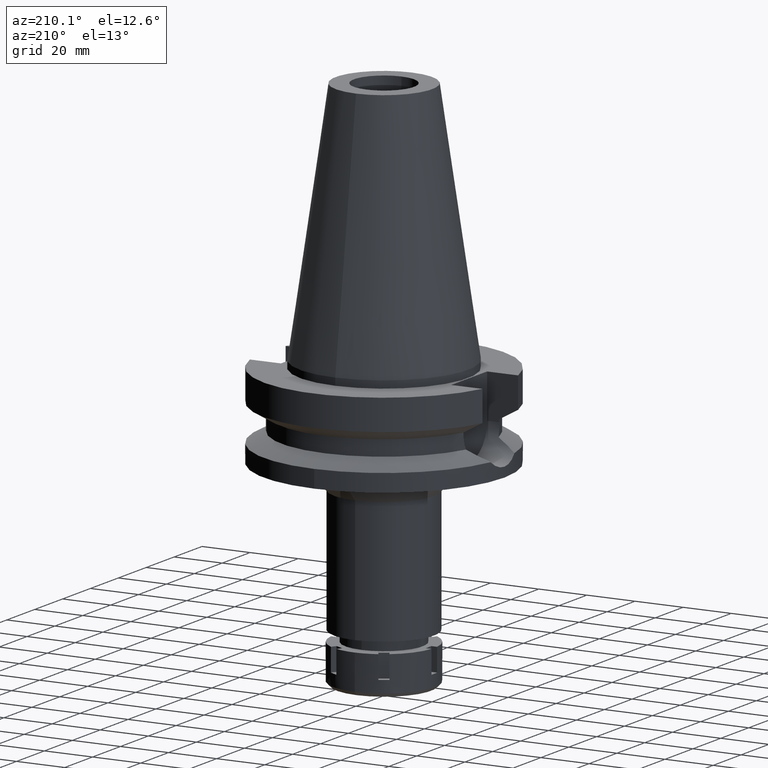
[diagram: clean part render]
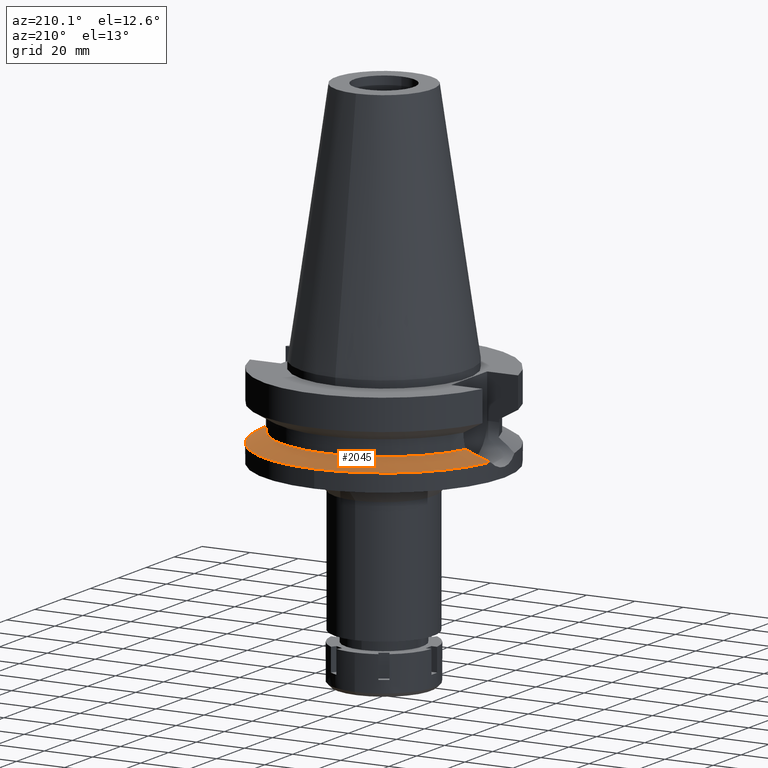
[diagram: same view with one face highlighted and labeled with its STEP entity id]
A machine part, auxiliary view. The second image highlights one B-rep face of the part: STEP entity #2045.
In plain terms, the highlighted conical surface has half-angle 60 deg.
Its self-contained STEP definition (entity closure, byte-faithful):
#33 = VERTEX_POINT ( 'NONE', #559 ) ;
#34 = EDGE_CURVE ( 'NONE', #2012, #2602, #3513, .T. ) ;
#55 = CARTESIAN_POINT ( 'NONE',  ( 45.33243307059954930, 10.38335453230233441, -28.72023715090724139 ) ) ;
#62 = CARTESIAN_POINT ( 'NONE',  ( -40.85052569294000335, 11.72538061688000077, -26.40718074535000426 ) ) ;
#72 = EDGE_LOOP ( 'NONE', ( #3275, #3635, #3191, #892, #3373 ) ) ;
#130 = CARTESIAN_POINT ( 'NONE',  ( 45.40379164219142893, 10.35650822756904432, -28.75694566959975518 ) ) ;
#251 = EDGE_CURVE ( 'NONE', #2969, #3044, #2803, .T. ) ;
#258 = CARTESIAN_POINT ( 'NONE',  ( 0.0000000000000000000, 0.0000000000000000000, -30.73730776426999967 ) ) ;
#376 = CARTESIAN_POINT ( 'NONE',  ( -46.98627468532401963, 9.746406323360600865, -29.57076731345760123 ) ) ;
#427 = CARTESIAN_POINT ( 'NONE',  ( 46.75953253645555208, 9.809270111663222380, -29.45390692277220168 ) ) ;
#462 = CARTESIAN_POINT ( 'NONE',  ( 49.26250064874000145, 8.556052234130000045, -30.73730776426999967 ) ) ;
#559 = CARTESIAN_POINT ( 'NONE',  ( -49.26250064874000145, 8.556052234130000045, -30.73730776426999967 ) ) ;
#630 = CARTESIAN_POINT ( 'NONE',  ( 45.48500909913860113, 10.32574754409892215, -28.79872370404616078 ) ) ;
#661 = CARTESIAN_POINT ( 'NONE',  ( 42.53034043756355231, 11.33527986160932066, -27.27724400854194542 ) ) ;
#761 = EDGE_CURVE ( 'NONE', #3044, #33, #2720, .T. ) ;
#811 = DIRECTION ( 'NONE',  ( 0.0000000000000000000, -1.000000000000000000, 0.0000000000000000000 ) ) ;
#816 = B_SPLINE_CURVE_WITH_KNOTS ( 'NONE', 3,
 ( #1187, #2662, #1555, #2052, #427, #3504, #1203, #2309, #630, #130, #1259, #3490, #55, #1501, #661, #2900 ),
 .UNSPECIFIED., .F., .F.,
 ( 4, 2, 2, 1, 1, 1, 1, 2, 2, 4 ),
 ( 0.0000000000000000000, 0.2500000000000469069, 0.3750000000000713873, 0.4375000000000827671, 0.4687500000000875966, 0.4843750000000898170, 0.4921875000000899281, 0.4960937500000889289, 0.5000000000000879297, 1.000000000000000000 ),
 .UNSPECIFIED. ) ;
#865 = CARTESIAN_POINT ( 'NONE',  ( 0.0000000000000000000, 0.0000000000000000000, -28.57224425480999841 ) ) ;
#892 = ORIENTED_EDGE ( 'NONE', *, *, #3013, .F. ) ;
#933 = CARTESIAN_POINT ( 'NONE',  ( 0.0000000000000000000, 0.0000000000000000000, -30.73730776426999967 ) ) ;
#1102 = DIRECTION ( 'NONE',  ( -0.9852500129747439050, 0.1711210446826074982, 0.0000000000000000000 ) ) ;
#1173 = EDGE_CURVE ( 'NONE', #2602, #2969, #816, .T. ) ;
#1187 = CARTESIAN_POINT ( 'NONE',  ( 49.26250064874000145, 8.556052234130000045, -30.73730776426999967 ) ) ;
#1203 = CARTESIAN_POINT ( 'NONE',  ( 45.96584841009470068, 10.13901845308247651, -29.04601403992775843 ) ) ;
#1259 = CARTESIAN_POINT ( 'NONE',  ( 45.36888519996826119, 10.36965759942468246, -28.73898915168728507 ) ) ;
#1501 = CARTESIAN_POINT ( 'NONE',  ( 44.02092064244708070, 10.87473587190525315, -28.04554399755864580 ) ) ;
#1555 = CARTESIAN_POINT ( 'NONE',  ( 48.08420350912489738, 9.199014339284307340, -30.13377188362764514 ) ) ;
#1777 = CARTESIAN_POINT ( 'NONE',  ( -42.65282647486308321, 11.30683512041312078, -27.34068588608615613 ) ) ;
#1813 = CARTESIAN_POINT ( 'NONE',  ( 0.0000000000000000000, 0.0000000000000000000, -26.40718074535000426 ) ) ;
#1814 = CARTESIAN_POINT ( 'NONE',  ( -40.85052569294000335, 11.72538061688000077, -26.40718074535000426 ) ) ;
#2012 = VERTEX_POINT ( 'NONE', #2530 ) ;
#2045 = ADVANCED_FACE ( 'NONE', ( #3407 ), #2623, .T. ) ;
#2052 = CARTESIAN_POINT ( 'NONE',  ( 47.09914492383754947, 9.658820935553016795, -29.62829927832092380 ) ) ;
#2055 = DIRECTION ( 'NONE',  ( 0.0000000000000000000, 0.0000000000000000000, -1.000000000000000000 ) ) ;
#2215 = CIRCLE ( 'NONE', #3417, 50.00000000000000000 ) ;
#2309 = CARTESIAN_POINT ( 'NONE',  ( 45.64652038007193369, 10.26391370890529053, -28.88179748783484513 ) ) ;
#2328 = AXIS2_PLACEMENT_3D ( 'NONE', #1813, #2369, #3215 ) ;
#2354 = CARTESIAN_POINT ( 'NONE',  ( -48.20261884556736476, 9.164282311039627871, -30.19450175069877318 ) ) ;
#2369 = DIRECTION ( 'NONE',  ( 0.0000000000000000000, 0.0000000000000000000, 1.000000000000000000 ) ) ;
#2530 = CARTESIAN_POINT ( 'NONE',  ( 0.0000000000000000000, 50.00000000000000000, -30.73730776426999967 ) ) ;
#2602 = VERTEX_POINT ( 'NONE', #462 ) ;
#2615 = AXIS2_PLACEMENT_3D ( 'NONE', #933, #2055, #3548 ) ;
#2623 = CONICAL_SURFACE ( 'NONE', #3585, 46.25000000000000000, 1.047197551196400456 ) ;
#2649 = CARTESIAN_POINT ( 'NONE',  ( -44.24066165069599066, 10.80637458481063717, -28.15885345118574179 ) ) ;
#2662 = CARTESIAN_POINT ( 'NONE',  ( 48.69587113017157520, 8.881221620589634824, -30.44711511333064635 ) ) ;
#2720 = B_SPLINE_CURVE_WITH_KNOTS ( 'NONE', 3,
 ( #1814, #1777, #2649, #376, #2354, #3505 ),
 .UNSPECIFIED., .F., .F.,
 ( 4, 2, 4 ),
 ( 0.0000000000000000000, 0.5000000000000000000, 1.000000000000000000 ),
 .UNSPECIFIED. ) ;
#2803 = CIRCLE ( 'NONE', #2328, 42.50000000000000000 ) ;
#2900 = CARTESIAN_POINT ( 'NONE',  ( 40.85052569294000335, 11.72538061688000077, -26.40718074535000426 ) ) ;
#2969 = VERTEX_POINT ( 'NONE', #3335 ) ;
#3013 = EDGE_CURVE ( 'NONE', #33, #2012, #2215, .T. ) ;
#3044 = VERTEX_POINT ( 'NONE', #62 ) ;
#3128 = DIRECTION ( 'NONE',  ( 0.0000000000000000000, 0.0000000000000000000, -1.000000000000000000 ) ) ;
#3191 = ORIENTED_EDGE ( 'NONE', *, *, #34, .F. ) ;
#3215 = DIRECTION ( 'NONE',  ( 0.0000000000000000000, 1.000000000000000000, 0.0000000000000000000 ) ) ;
#3275 = ORIENTED_EDGE ( 'NONE', *, *, #251, .F. ) ;
#3335 = CARTESIAN_POINT ( 'NONE',  ( 40.85052569294000335, 11.72538061688000077, -26.40718074535000426 ) ) ;
#3373 = ORIENTED_EDGE ( 'NONE', *, *, #761, .F. ) ;
#3407 = FACE_OUTER_BOUND ( 'NONE', #72, .T. ) ;
#3417 = AXIS2_PLACEMENT_3D ( 'NONE', #258, #3651, #1102 ) ;
#3490 = CARTESIAN_POINT ( 'NONE',  ( 45.34559224722517712, 10.37841630773243295, -28.72700666603421027 ) ) ;
#3504 = CARTESIAN_POINT ( 'NONE',  ( 46.23322466695320543, 10.02993712604732579, -29.18345497429006841 ) ) ;
#3505 = CARTESIAN_POINT ( 'NONE',  ( -49.26250064874000145, 8.556052234130000045, -30.73730776426999967 ) ) ;
#3513 = CIRCLE ( 'NONE', #2615, 50.00000000000000000 ) ;
#3548 = DIRECTION ( 'NONE',  ( 0.0000000000000000000, 1.000000000000000000, 0.0000000000000000000 ) ) ;
#3585 = AXIS2_PLACEMENT_3D ( 'NONE', #865, #3128, #811 ) ;
#3635 = ORIENTED_EDGE ( 'NONE', *, *, #1173, .F. ) ;
#3651 = DIRECTION ( 'NONE',  ( 0.0000000000000000000, 0.0000000000000000000, -1.000000000000000000 ) ) ;